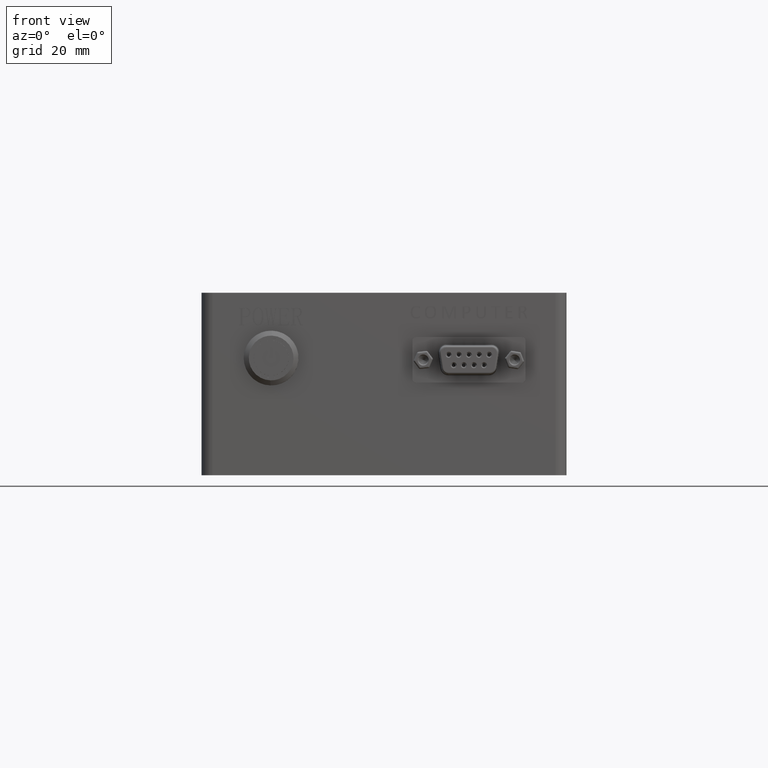
[diagram: clean part render]
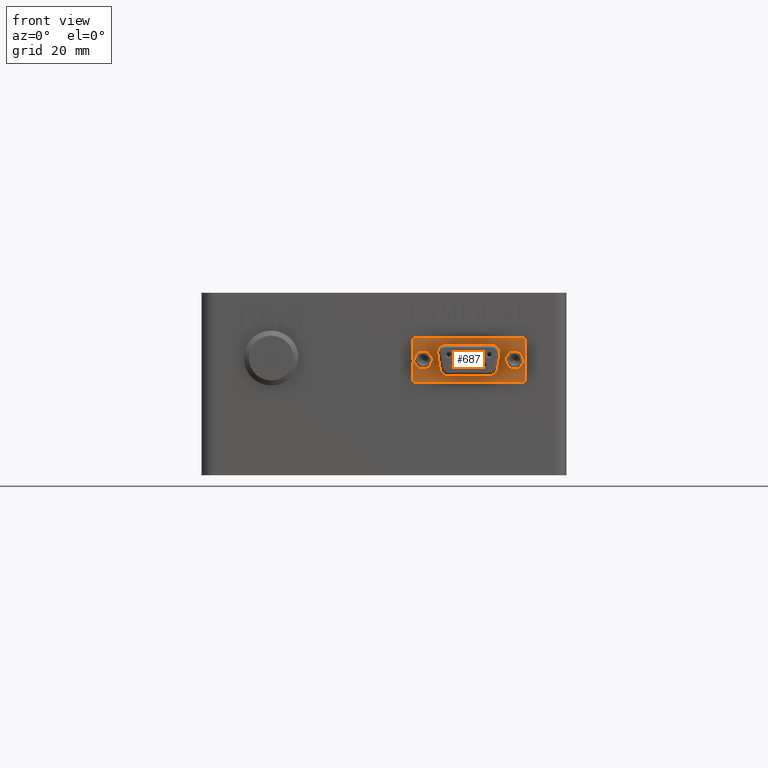
[diagram: same view with one face highlighted and labeled with its STEP entity id]
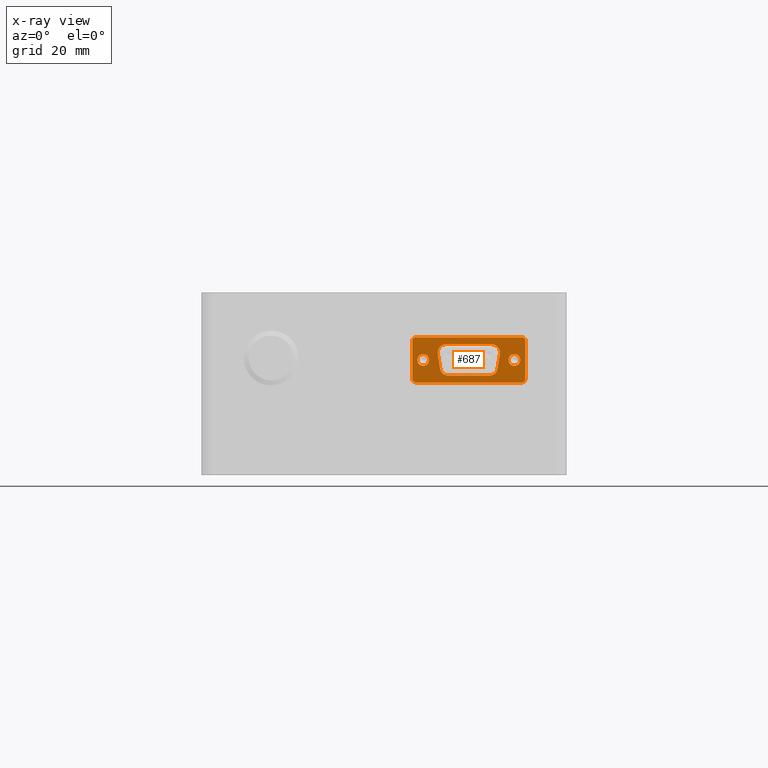
[diagram: x-ray of the same camera — body ghosted, the highlighted face saturated]
A machine part, front view. The second image highlights one B-rep face of the part: STEP entity #687.
The next image is the same camera in x-ray: the body ghosted, the highlighted face saturated — about 0% of this face is hidden behind the body in this view.
In plain terms, the highlighted planar face has unit normal (0, -1, -0).
Its self-contained STEP definition (entity closure, byte-faithful):
#118 = CARTESIAN_POINT ( 'NONE',  ( 65.16332832530879671, -0.8000000000000229150, -19.44379448218207784 ) ) ;
#217 = CARTESIAN_POINT ( 'NONE',  ( 59.41241353529412805, -0.8000000000000212497, -19.33508258535561097 ) ) ;
#458 = B_SPLINE_CURVE_WITH_KNOTS ( 'NONE', 3,
 ( #4830, #4235, #22084, #21786 ),
 .UNSPECIFIED., .F., .F.,
 ( 4, 4 ),
 ( 0.000000000000000000, 1.000000000000000000 ),
 .UNSPECIFIED. ) ;
#581 = CARTESIAN_POINT ( 'NONE',  ( 87.33066148196277823, -0.8000000000000229150, -18.23815931579802907 ) ) ;
#687 = ADVANCED_FACE ( 'NONE', ( #23783, #45069, #18819, #36350 ), #36640, .T. ) ;
#1094 = CARTESIAN_POINT ( 'NONE',  ( 60.95303004803621150, -0.8000000000000209166, -16.82325786537898438 ) ) ;
#1123 = CARTESIAN_POINT ( 'NONE',  ( 57.84992012852401189, -0.7999999999999675149, -12.70127120661569720 ) ) ;
#1249 = ORIENTED_EDGE ( 'NONE', *, *, #4541, .F. ) ;
#1282 = CARTESIAN_POINT ( 'NONE',  ( 65.37166165864228162, -0.8000000000000229150, -20.77712781551537802 ) ) ;
#1538 = ORIENTED_EDGE ( 'NONE', *, *, #39588, .T. ) ;
#1632 = B_SPLINE_CURVE_WITH_KNOTS ( 'NONE', 3,
 ( #42297, #20139, #15747, #53342, #30020, #25636, #21825, #39626, #48659, #12773, #57422, #43989, #47813, #48090, #17430, #52765 ),
 .UNSPECIFIED., .F., .F.,
 ( 4, 2, 2, 2, 2, 2, 2, 4 ),
 ( 0.000000000000000000, 0.1250000000000046074, 0.2500000000000094924, 0.3750000000000139888, 0.5000000000000189848, 0.6250000000000239808, 0.7500000000000279776, 1.000000000000000000 ),
 .UNSPECIFIED. ) ;
#1668 = CARTESIAN_POINT ( 'NONE',  ( 60.95412178630254374, -0.8000000000000203615, -20.02325786537898011 ) ) ;
#1822 = EDGE_CURVE ( 'NONE', #5781, #31170, #5918, .T. ) ;
#2077 = VERTEX_POINT ( 'NONE', #53140 ) ;
#2128 = CARTESIAN_POINT ( 'NONE',  ( 67.63642933951430791, -0.8000000000000229150, -22.71550492665577892 ) ) ;
#2188 = ORIENTED_EDGE ( 'NONE', *, *, #42358, .T. ) ;
#2353 = CARTESIAN_POINT ( 'NONE',  ( 59.15214703213378300, -0.8000000000000229150, -18.60835641496032977 ) ) ;
#2415 = VERTEX_POINT ( 'NONE', #9786 ) ;
#2816 = CARTESIAN_POINT ( 'NONE',  ( 88.74066148196280324, -0.8000000000000229150, -20.15659119871232718 ) ) ;
#2911 = CARTESIAN_POINT ( 'NONE',  ( 66.03936052835879877, -0.8000000000000229150, -22.07378416293312995 ) ) ;
#2951 = CARTESIAN_POINT ( 'NONE',  ( 81.78796001394329096, -0.8000000000000229150, -16.44500586572562995 ) ) ;
#3192 = CARTESIAN_POINT ( 'NONE',  ( 78.84637917458231016, -0.8000000000000229150, -22.71550492665577892 ) ) ;
#3355 = CARTESIAN_POINT ( 'NONE',  ( 84.93397956083674671, -0.8000000000000067057, -19.82086420746477984 ) ) ;
#3364 = CARTESIAN_POINT ( 'NONE',  ( 79.84452238133732749, -0.8000000000000229150, -22.48895375076963177 ) ) ;
#3502 = EDGE_CURVE ( 'NONE', #34409, #38536, #1632, .T. ) ;
#3513 = CARTESIAN_POINT ( 'NONE',  ( 81.41405751355978282, -0.8000000000000229150, -15.19420766651972876 ) ) ;
#3677 = B_SPLINE_CURVE_WITH_KNOTS ( 'NONE', 3,
 ( #8895, #56513, #26143, #39564, #39862, #17080, #48309, #43363, #57649, #57357, #57063, #47751, #52993, #3364, #39009, #52703, #21485, #48886, #7756, #17365, #48600 ),
 .UNSPECIFIED., .F., .F.,
 ( 4, 1, 1, 2, 2, 2, 2, 1, 1, 1, 2, 2, 4 ),
 ( 0.000000000000000000, 0.1250000000000441869, 0.1875000000000695000, 0.2187500000000794920, 0.2500000000000889844, 0.3750000000002089995, 0.5000000000003289591, 0.6250000000004489742, 0.6875000000005110357, 0.7187500000005200285, 0.7343750000005020429, 0.7500000000004839462, 1.000000000000000000 ),
 .UNSPECIFIED. ) ;
#3748 = EDGE_CURVE ( 'NONE', #2415, #26498, #3677, .T. ) ;
#3889 = CARTESIAN_POINT ( 'NONE',  ( 59.41180698102721180, -0.8000000000000215827, -17.51174632677707166 ) ) ;
#3916 = CARTESIAN_POINT ( 'NONE',  ( 85.52868672782102522, -0.8000000000000068168, -16.82325786537898438 ) ) ;
#4059 = ORIENTED_EDGE ( 'NONE', *, *, #9459, .T. ) ;
#4071 = CARTESIAN_POINT ( 'NONE',  ( 79.80172021305482133, -0.8000000000000229150, -14.14857528253308416 ) ) ;
#4235 = CARTESIAN_POINT ( 'NONE',  ( 78.07448999868627482, -0.8000000000000229150, -24.62325786537897798 ) ) ;
#4358 = EDGE_CURVE ( 'NONE', #31606, #2077, #7004, .T. ) ;
#4541 = EDGE_CURVE ( 'NONE', #57336, #13627, #35531, .T. ) ;
#4618 = CARTESIAN_POINT ( 'NONE',  ( 88.00246086976194704, -0.7999999999999674039, -24.62325786537898153 ) ) ;
#4830 = CARTESIAN_POINT ( 'NONE',  ( 87.74066148196280324, -0.8000000000000229150, -24.62325786537897798 ) ) ;
#5035 = B_SPLINE_CURVE_WITH_KNOTS ( 'NONE', 3,
 ( #34870, #43340, #12125, #21185, #24993, #30496 ),
 .UNSPECIFIED., .F., .F.,
 ( 4, 2, 4 ),
 ( 0.000000000000000000, 0.5000000000000000000, 1.000000000000000000 ),
 .UNSPECIFIED. ) ;
#5781 = VERTEX_POINT ( 'NONE', #29409 ) ;
#5918 = B_SPLINE_CURVE_WITH_KNOTS ( 'NONE', 3,
 ( #53793, #30730, #21695, #47958 ),
 .UNSPECIFIED., .F., .F.,
 ( 4, 4 ),
 ( 0.000000000000000000, 1.000000000000000000 ),
 .UNSPECIFIED. ) ;
#6062 = EDGE_LOOP ( 'NONE', ( #48375, #44108, #42787, #4059 ) ) ;
#6331 = CARTESIAN_POINT ( 'NONE',  ( 88.74066148196280324, -0.8000000000000229150, -23.62325786537897798 ) ) ;
#6722 = CARTESIAN_POINT ( 'NONE',  ( 65.74958718103779631, -0.8000000000000229150, -21.72833105148452759 ) ) ;
#6791 = ORIENTED_EDGE ( 'NONE', *, *, #1822, .F. ) ;
#7004 = B_SPLINE_CURVE_WITH_KNOTS ( 'NONE', 3,
 ( #21629, #29824, #4071, #43512, #47894, #11732, #52008, #26005, #43791, #16401, #3513, #12574, #38313, #21359, #2951, #16950 ),
 .UNSPECIFIED., .F., .F.,
 ( 4, 2, 2, 2, 2, 2, 2, 4 ),
 ( 0.000000000000000000, 0.1250000000000000000, 0.2500000000000000000, 0.3750000000000000000, 0.5000000000000000000, 0.6250000000000000000, 0.7500000000000000000, 1.000000000000000000 ),
 .UNSPECIFIED. ) ;
#7005 = CARTESIAN_POINT ( 'NONE',  ( 65.49619395360379315, -0.8000000000000229150, -21.28624587156673087 ) ) ;
#7190 = AXIS2_PLACEMENT_3D ( 'NONE', #27573, #50620, #54142 ) ;
#7245 = CARTESIAN_POINT ( 'NONE',  ( 57.74214703213381483, -0.8000000000000229150, -23.62325786537897798 ) ) ;
#7306 = CARTESIAN_POINT ( 'NONE',  ( 66.89960734923478469, -0.8000000000000229150, -22.59409420372617561 ) ) ;
#7370 = EDGE_CURVE ( 'NONE', #10389, #44955, #49243, .T. ) ;
#7464 = CARTESIAN_POINT ( 'NONE',  ( 84.93363263330176949, -0.8000000000000071498, -17.02624577868271061 ) ) ;
#7661 = CARTESIAN_POINT ( 'NONE',  ( 57.74214703213381483, -0.8000000000000229150, -16.68992453204563020 ) ) ;
#7716 = CARTESIAN_POINT ( 'NONE',  ( 59.82305313703623995, -0.8000000000000212497, -17.09837536939596347 ) ) ;
#7736 = CARTESIAN_POINT ( 'NONE',  ( 57.84992012852400478, -0.7999999999999674039, -24.14524452414225664 ) ) ;
#7756 = CARTESIAN_POINT ( 'NONE',  ( 79.36861884771329301, -0.8000000000000229150, -22.67106157782707854 ) ) ;
#8025 = CARTESIAN_POINT ( 'NONE',  ( 85.74140425704828772, -0.8000000000000229150, -20.02325786537898011 ) ) ;
#8563 = CARTESIAN_POINT ( 'NONE',  ( 59.53191970639831254, -0.8000000000000216938, -17.35809530767429720 ) ) ;
#8804 = CARTESIAN_POINT ( 'NONE',  ( 81.11114685545378222, -0.8000000000000229150, -20.77712781551542420 ) ) ;
#8895 = CARTESIAN_POINT ( 'NONE',  ( 81.11114685545378222, -0.8000000000000229150, -20.77712781551542420 ) ) ;
#9459 = EDGE_CURVE ( 'NONE', #43215, #27560, #42013, .T. ) ;
#9460 = B_SPLINE_CURVE_WITH_KNOTS ( 'NONE', 3,
 ( #8025, #48298, #56780, #3355, #53265, #38997, #47742, #16796, #48016, #21475, #43633, #13276, #39275, #47455, #7464, #12697, #3916, #39551 ),
 .UNSPECIFIED., .F., .F.,
 ( 4, 2, 2, 2, 2, 2, 2, 2, 4 ),
 ( 0.000000000000000000, 0.1250000000000000000, 0.2500000000000000000, 0.3750000000000000000, 0.5000000000000000000, 0.6250000000000000000, 0.7500000000000000000, 0.8750000000000000000, 1.000000000000000000 ),
 .UNSPECIFIED. ) ;
#9786 = CARTESIAN_POINT ( 'NONE',  ( 81.11114685545378222, -0.8000000000000229150, -20.77712781551542420 ) ) ;
#9856 = CARTESIAN_POINT ( 'NONE',  ( 62.34119630927296640, -0.8000000000000199174, -18.21213550590827523 ) ) ;
#9863 = CARTESIAN_POINT ( 'NONE',  ( 59.82331459801243057, -0.8000000000000209166, -19.74784668104077312 ) ) ;
#9889 = CARTESIAN_POINT ( 'NONE',  ( 58.22016037337053973, -0.7999999999999674039, -12.33103096176916580 ) ) ;
#10148 = CARTESIAN_POINT ( 'NONE',  ( 62.02191444988514490, -0.8000000000000196954, -19.40519528917248948 ) ) ;
#10389 = VERTEX_POINT ( 'NONE', #19327 ) ;
#10429 = CARTESIAN_POINT ( 'NONE',  ( 60.74140425704832325, -0.8000000000000229150, -20.02325786537898011 ) ) ;
#10481 = CARTESIAN_POINT ( 'NONE',  ( 64.74666165864229583, -0.8000000000000229150, -16.77712781551547749 ) ) ;
#10521 = B_SPLINE_CURVE_WITH_KNOTS ( 'NONE', 3,
 ( #1282, #118, #13859, #45658 ),
 .UNSPECIFIED., .F., .F.,
 ( 4, 4 ),
 ( 0.000000000000000000, 1.000000000000000000 ),
 .UNSPECIFIED. ) ;
#11139 = ORIENTED_EDGE ( 'NONE', *, *, #12545, .F. ) ;
#11403 = CARTESIAN_POINT ( 'NONE',  ( 65.62992489534779850, -0.8000000000000229150, -21.53163307446892460 ) ) ;
#11654 = ORIENTED_EDGE ( 'NONE', *, *, #56064, .T. ) ;
#11732 = CARTESIAN_POINT ( 'NONE',  ( 80.58119963870980484, -0.8000000000000229150, -14.41044273582622814 ) ) ;
#11971 = CARTESIAN_POINT ( 'NONE',  ( 66.60832698171780919, -0.8000000000000229150, -22.47715193817913359 ) ) ;
#12125 = CARTESIAN_POINT ( 'NONE',  ( 88.26264814072611387, -0.7999999999999671818, -12.33103096176916402 ) ) ;
#12296 = CARTESIAN_POINT ( 'NONE',  ( 87.25130140559382141, -0.8000000000000055955, -17.85835794617969086 ) ) ;
#12377 = VERTEX_POINT ( 'NONE', #49804 ) ;
#12545 = EDGE_CURVE ( 'NONE', #31170, #57336, #5035, .T. ) ;
#12574 = CARTESIAN_POINT ( 'NONE',  ( 81.56863201400177843, -0.8000000000000229150, -15.48249286880382769 ) ) ;
#12697 = CARTESIAN_POINT ( 'NONE',  ( 85.32458889722620654, -0.8000000000000071498, -16.86385544803972891 ) ) ;
#12737 = CARTESIAN_POINT ( 'NONE',  ( 87.74066148196280324, -0.8000000000000229150, -24.62325786537897798 ) ) ;
#12773 = CARTESIAN_POINT ( 'NONE',  ( 65.37795858093680579, -0.8000000000000229150, -14.80619049338637794 ) ) ;
#12917 = CARTESIAN_POINT ( 'NONE',  ( 86.65975537706478349, -0.8000000000000059286, -19.74814036135813211 ) ) ;
#13276 = CARTESIAN_POINT ( 'NONE',  ( 84.34379791555494421, -0.8000000000000072609, -17.61583316850715519 ) ) ;
#13542 = EDGE_CURVE ( 'NONE', #12377, #34409, #10521, .T. ) ;
#13627 = VERTEX_POINT ( 'NONE', #24360 ) ;
#13859 = CARTESIAN_POINT ( 'NONE',  ( 64.95499499197582338, -0.8000000000000229150, -18.11046114884877412 ) ) ;
#14121 = B_SPLINE_CURVE_WITH_KNOTS ( 'NONE', 3,
 ( #47315, #30646, #43772, #21058 ),
 .UNSPECIFIED., .F., .F.,
 ( 4, 4 ),
 ( 0.000000000000000000, 1.000000000000000000 ),
 .UNSPECIFIED. ) ;
#14697 = B_SPLINE_CURVE_WITH_KNOTS ( 'NONE', 3,
 ( #23327, #33471, #1123, #9889, #54544, #15940 ),
 .UNSPECIFIED., .F., .F.,
 ( 4, 2, 4 ),
 ( 0.000000000000000000, 0.5000000000000000000, 1.000000000000000000 ),
 .UNSPECIFIED. ) ;
#14805 = CARTESIAN_POINT ( 'NONE',  ( 62.02220820029873494, -0.8000000000000200284, -17.44102602626195520 ) ) ;
#14919 = EDGE_CURVE ( 'NONE', #17586, #48571, #38256, .T. ) ;
#15080 = CARTESIAN_POINT ( 'NONE',  ( 87.33066148196277823, -0.8000000000000229150, -18.23815931579802907 ) ) ;
#15322 = ORIENTED_EDGE ( 'NONE', *, *, #3748, .T. ) ;
#15484 = CARTESIAN_POINT ( 'NONE',  ( 67.08657304121379639, -0.8000000000000229150, -22.65027914975502910 ) ) ;
#15687 = CARTESIAN_POINT ( 'NONE',  ( 88.74066148196280324, -0.8000000000000229150, -16.68992453204563020 ) ) ;
#15747 = CARTESIAN_POINT ( 'NONE',  ( 64.71301855574380113, -0.8000000000000229150, -16.44803534482992902 ) ) ;
#15790 = VERTEX_POINT ( 'NONE', #15080 ) ;
#15924 = EDGE_CURVE ( 'NONE', #51745, #46880, #9460, .T. ) ;
#15940 = CARTESIAN_POINT ( 'NONE',  ( 58.74214703213381483, -0.8000000000000229150, -12.22325786537897763 ) ) ;
#16401 = CARTESIAN_POINT ( 'NONE',  ( 81.32123131720180709, -0.8000000000000229150, -15.05900691515713063 ) ) ;
#16463 = CARTESIAN_POINT ( 'NONE',  ( 86.12783644811321437, -0.8000000000000061506, -19.98836855782054656 ) ) ;
#16632 = CARTESIAN_POINT ( 'NONE',  ( 66.36810844373431451, -0.8000000000000229150, -22.33794696940752544 ) ) ;
#16676 = CARTESIAN_POINT ( 'NONE',  ( 86.95115026864850449, -0.8000000000000060396, -17.35780162733155763 ) ) ;
#16796 = CARTESIAN_POINT ( 'NONE',  ( 84.18221185714185140, -0.8000000000000072609, -18.84057930859540875 ) ) ;
#16913 = CARTESIAN_POINT ( 'NONE',  ( 75.10972922955983222, -0.8000000000000229150, -22.71550492665577892 ) ) ;
#16950 = CARTESIAN_POINT ( 'NONE',  ( 81.73614685545376801, -0.8000000000000229150, -16.77712781551547749 ) ) ;
#17045 = CARTESIAN_POINT ( 'NONE',  ( 59.98944815139013542, -0.8000000000000213607, -16.99770440317210074 ) ) ;
#17080 = CARTESIAN_POINT ( 'NONE',  ( 80.89162917455932700, -0.8000000000000229150, -21.45873259092143215 ) ) ;
#17365 = CARTESIAN_POINT ( 'NONE',  ( 79.11200076842828821, -0.8000000000000229150, -22.71544329610622981 ) ) ;
#17430 = CARTESIAN_POINT ( 'NONE',  ( 66.67529010272527046, -0.8000000000000229150, -14.13109073048793363 ) ) ;
#17516 = B_SPLINE_CURVE_WITH_KNOTS ( 'NONE', 3,
 ( #20612, #51816, #44173, #3889, #8563, #7716, #17045, #52952, #56478, #43326 ),
 .UNSPECIFIED., .F., .F.,
 ( 4, 2, 2, 2, 4 ),
 ( 0.000000000000000000, 0.2500000000000000000, 0.5000000000000000000, 0.7500000000000000000, 1.000000000000000000 ),
 .UNSPECIFIED. ) ;
#17533 = CARTESIAN_POINT ( 'NONE',  ( 67.01142933951426528, -0.8000000000000229150, -14.13101080410277710 ) ) ;
#17586 = VERTEX_POINT ( 'NONE', #27736 ) ;
#17746 = CARTESIAN_POINT ( 'NONE',  ( 60.54581432107978145, -0.8000000000000205835, -20.02325786537897656 ) ) ;
#17891 = EDGE_CURVE ( 'NONE', #15790, #48783, #39967, .T. ) ;
#18055 = CARTESIAN_POINT ( 'NONE',  ( 87.74066148196280324, -0.8000000000000229150, -24.62325786537897798 ) ) ;
#18458 = CARTESIAN_POINT ( 'NONE',  ( 81.73614685545376801, -0.8000000000000229150, -16.77712781551547749 ) ) ;
#18819 = FACE_BOUND ( 'NONE', #53687, .T. ) ;
#18906 = CARTESIAN_POINT ( 'NONE',  ( 61.54882895324046643, -0.8000000000000203615, -17.02565152328229203 ) ) ;
#19196 = CARTESIAN_POINT ( 'NONE',  ( 61.72334201359438310, -0.8000000000000204725, -17.14274800469959459 ) ) ;
#19327 = CARTESIAN_POINT ( 'NONE',  ( 60.74140425704832325, -0.8000000000000229150, -16.82325786537897727 ) ) ;
#19499 = CARTESIAN_POINT ( 'NONE',  ( 87.33066148196277823, -0.8000000000000229150, -18.60835641496053228 ) ) ;
#20139 = CARTESIAN_POINT ( 'NONE',  ( 64.72092419118679629, -0.8000000000000229150, -16.61215084589672841 ) ) ;
#20612 = CARTESIAN_POINT ( 'NONE',  ( 59.15214703213378300, -0.8000000000000229150, -18.23815931579812855 ) ) ;
#20755 = CARTESIAN_POINT ( 'NONE',  ( 65.41272838336381312, -0.8000000000000229150, -21.03955563236457849 ) ) ;
#20832 = CARTESIAN_POINT ( 'NONE',  ( 57.74214703213381483, -0.8000000000000229150, -13.22325786537897940 ) ) ;
#20852 = CARTESIAN_POINT ( 'NONE',  ( 87.07100153306930679, -0.8000000000000055955, -19.33476940398136534 ) ) ;
#20967 = B_SPLINE_CURVE_WITH_KNOTS ( 'NONE', 3,
 ( #3192, #16913, #21038, #38561 ),
 .UNSPECIFIED., .F., .F.,
 ( 4, 4 ),
 ( 0.000000000000000000, 1.000000000000000000 ),
 .UNSPECIFIED. ) ;
#21036 = CARTESIAN_POINT ( 'NONE',  ( 67.63642933951430791, -0.8000000000000229150, -22.71550492665577892 ) ) ;
#21038 = CARTESIAN_POINT ( 'NONE',  ( 71.37307928453678585, -0.8000000000000229150, -22.71550492665577892 ) ) ;
#21058 = CARTESIAN_POINT ( 'NONE',  ( 79.47137917458229595, -0.8000000000000229150, -14.13101080410277710 ) ) ;
#21185 = CARTESIAN_POINT ( 'NONE',  ( 88.63288838557259908, -0.7999999999999668487, -12.70127120661569720 ) ) ;
#21359 = CARTESIAN_POINT ( 'NONE',  ( 81.76810762080283723, -0.8000000000000229150, -16.11849780069592697 ) ) ;
#21475 = CARTESIAN_POINT ( 'NONE',  ( 84.14119630927235960, -0.8000000000000075939, -18.21213550588149133 ) ) ;
#21485 = CARTESIAN_POINT ( 'NONE',  ( 79.64960019511929090, -0.8000000000000229150, -22.57019931813507441 ) ) ;
#21629 = CARTESIAN_POINT ( 'NONE',  ( 79.47137917458229595, -0.8000000000000229150, -14.13101080410277710 ) ) ;
#21695 = CARTESIAN_POINT ( 'NONE',  ( 78.07448999868627482, -0.8000000000000229150, -12.22325786537897763 ) ) ;
#21786 = CARTESIAN_POINT ( 'NONE',  ( 58.74214703213381483, -0.8000000000000229150, -24.62325786537897798 ) ) ;
#21825 = CARTESIAN_POINT ( 'NONE',  ( 64.91265392944983148, -0.8000000000000229150, -15.48533790680847666 ) ) ;
#22084 = CARTESIAN_POINT ( 'NONE',  ( 68.40831851541028641, -0.8000000000000229150, -24.62325786537897798 ) ) ;
#22108 = CARTESIAN_POINT ( 'NONE',  ( 59.15214703213378300, -0.8000000000000229150, -18.48495738190628046 ) ) ;
#22400 = CARTESIAN_POINT ( 'NONE',  ( 59.15214703213378300, -0.8000000000000229150, -18.60835641496032977 ) ) ;
#22593 = ORIENTED_EDGE ( 'NONE', *, *, #24243, .F. ) ;
#22594 = EDGE_CURVE ( 'NONE', #46880, #15790, #49800, .T. ) ;
#22971 = CARTESIAN_POINT ( 'NONE',  ( 85.74140425704828772, -0.8000000000000229150, -20.02325786537898011 ) ) ;
#22991 = EDGE_CURVE ( 'NONE', #44955, #43215, #30258, .T. ) ;
#23015 = CARTESIAN_POINT ( 'NONE',  ( 62.30059665695520010, -0.8000000000000199174, -18.00593642223968516 ) ) ;
#23225 = CARTESIAN_POINT ( 'NONE',  ( 59.15214703213378300, -0.8000000000000229150, -18.23815931579812855 ) ) ;
#23300 = CARTESIAN_POINT ( 'NONE',  ( 59.17490267857736796, -0.8000000000000215827, -18.80373652787930183 ) ) ;
#23327 = CARTESIAN_POINT ( 'NONE',  ( 57.74214703213381483, -0.8000000000000229150, -13.22325786537897940 ) ) ;
#23783 = FACE_BOUND ( 'NONE', #37145, .T. ) ;
#24243 = EDGE_CURVE ( 'NONE', #55244, #17586, #458, .T. ) ;
#24360 = CARTESIAN_POINT ( 'NONE',  ( 88.74066148196280324, -0.8000000000000229150, -23.62325786537897798 ) ) ;
#24399 = VERTEX_POINT ( 'NONE', #52380 ) ;
#24551 = CARTESIAN_POINT ( 'NONE',  ( 65.68371744065781570, -0.8000000000000229150, -21.62462019547688286 ) ) ;
#24993 = CARTESIAN_POINT ( 'NONE',  ( 88.74066148196280324, -0.7999999999999671818, -12.96145847757983383 ) ) ;
#25636 = CARTESIAN_POINT ( 'NONE',  ( 64.85141314891434661, -0.8000000000000229150, -15.63747401172847695 ) ) ;
#26005 = CARTESIAN_POINT ( 'NONE',  ( 80.98302430032927646, -0.8000000000000229150, -14.69166169789147602 ) ) ;
#26143 = CARTESIAN_POINT ( 'NONE',  ( 81.04419540511231901, -0.8000000000000229150, -21.09746198689292740 ) ) ;
#26398 = CARTESIAN_POINT ( 'NONE',  ( 57.74214703213382194, -0.7999999999999675149, -23.88505725317812534 ) ) ;
#26498 = VERTEX_POINT ( 'NONE', #42499 ) ;
#26901 = EDGE_CURVE ( 'NONE', #2077, #2415, #53881, .T. ) ;
#27374 = CARTESIAN_POINT ( 'NONE',  ( 87.33066148196277823, -0.8000000000000229150, -18.23815931579802907 ) ) ;
#27560 = VERTEX_POINT ( 'NONE', #23225 ) ;
#27573 = CARTESIAN_POINT ( 'NONE',  ( 58.70969845591977787, -0.8000000000000229150, -12.02850345761768303 ) ) ;
#27664 = CARTESIAN_POINT ( 'NONE',  ( 61.72363576400795893, -0.8000000000000200284, -19.70406214138293066 ) ) ;
#27672 = CARTESIAN_POINT ( 'NONE',  ( 59.53165824542211482, -0.8000000000000211386, -19.48871410340587573 ) ) ;
#27736 = CARTESIAN_POINT ( 'NONE',  ( 58.74214703213381483, -0.8000000000000229150, -24.62325786537897798 ) ) ;
#27875 = B_SPLINE_CURVE_WITH_KNOTS ( 'NONE', 3,
 ( #39971, #30912, #53102, #48702, #4618, #18055 ),
 .UNSPECIFIED., .F., .F.,
 ( 4, 2, 4 ),
 ( 0.000000000000000000, 0.5000000000000000000, 1.000000000000000000 ),
 .UNSPECIFIED. ) ;
#27948 = CARTESIAN_POINT ( 'NONE',  ( 62.34161220482311450, -0.8000000000000198064, -18.63438022485021861 ) ) ;
#28334 = ORIENTED_EDGE ( 'NONE', *, *, #4358, .T. ) ;
#29136 = EDGE_LOOP ( 'NONE', ( #1249, #11139, #6791, #54812, #31524, #43043, #22593, #39189 ) ) ;
#29409 = CARTESIAN_POINT ( 'NONE',  ( 58.74214703213381483, -0.8000000000000229150, -12.22325786537897763 ) ) ;
#29786 = CARTESIAN_POINT ( 'NONE',  ( 67.30959956731430793, -0.8000000000000229150, -22.69880827806332846 ) ) ;
#29812 = ORIENTED_EDGE ( 'NONE', *, *, #17891, .T. ) ;
#29824 = CARTESIAN_POINT ( 'NONE',  ( 79.63835167575633989, -0.8000000000000229150, -14.13105050642542793 ) ) ;
#29897 = ORIENTED_EDGE ( 'NONE', *, *, #22594, .T. ) ;
#30020 = CARTESIAN_POINT ( 'NONE',  ( 64.76102452721477221, -0.8000000000000229150, -15.95773322912442893 ) ) ;
#30159 = CARTESIAN_POINT ( 'NONE',  ( 85.74140425704828772, -0.8000000000000229150, -20.02325786537898011 ) ) ;
#30258 = B_SPLINE_CURVE_WITH_KNOTS ( 'NONE', 3,
 ( #57730, #17746, #49842, #35565, #9863, #27672, #217, #45463, #23300, #36157 ),
 .UNSPECIFIED., .F., .F.,
 ( 4, 2, 2, 2, 4 ),
 ( 0.000000000000000000, 0.2500000000000000000, 0.5000000000000000000, 0.7500000000000000000, 1.000000000000000000 ),
 .UNSPECIFIED. ) ;
#30496 = CARTESIAN_POINT ( 'NONE',  ( 88.74066148196280324, -0.8000000000000229150, -13.22325786537897940 ) ) ;
#30646 = CARTESIAN_POINT ( 'NONE',  ( 71.16474595120381252, -0.8000000000000229150, -14.13101080410277710 ) ) ;
#30730 = CARTESIAN_POINT ( 'NONE',  ( 68.40831851541028641, -0.8000000000000229150, -12.22325786537897763 ) ) ;
#30778 = CARTESIAN_POINT ( 'NONE',  ( 58.22016037337053973, -0.7999999999999675149, -24.51548476898879514 ) ) ;
#30912 = CARTESIAN_POINT ( 'NONE',  ( 88.74066148196277481, -0.7999999999999670708, -23.88505725317811823 ) ) ;
#30959 = CARTESIAN_POINT ( 'NONE',  ( 86.12821769688461870, -0.8000000000000067057, -16.85871342376849924 ) ) ;
#31170 = VERTEX_POINT ( 'NONE', #41756 ) ;
#31262 = CARTESIAN_POINT ( 'NONE',  ( 88.74066148196280324, -0.8000000000000229150, -13.22325786537897940 ) ) ;
#31524 = ORIENTED_EDGE ( 'NONE', *, *, #45764, .F. ) ;
#31606 = VERTEX_POINT ( 'NONE', #34101 ) ;
#33322 = CARTESIAN_POINT ( 'NONE',  ( 66.92910716440280794, -0.8000000000000229150, -22.60384283511762504 ) ) ;
#33471 = CARTESIAN_POINT ( 'NONE',  ( 57.74214703213380773, -0.7999999999999671818, -12.96145847757982494 ) ) ;
#33609 = EDGE_CURVE ( 'NONE', #24399, #5781, #14697, .T. ) ;
#33856 = VERTEX_POINT ( 'NONE', #2128 ) ;
#34101 = CARTESIAN_POINT ( 'NONE',  ( 79.47137917458229595, -0.8000000000000229150, -14.13101080410277710 ) ) ;
#34182 = CARTESIAN_POINT ( 'NONE',  ( 66.99196371856081100, -0.8000000000000229150, -22.62324837167092895 ) ) ;
#34280 = CARTESIAN_POINT ( 'NONE',  ( 85.93810506532736326, -0.8000000000000062617, -20.02325786537898367 ) ) ;
#34409 = VERTEX_POINT ( 'NONE', #10481 ) ;
#34454 = CARTESIAN_POINT ( 'NONE',  ( 65.63922410375927541, -0.8000000000000229150, -21.54828802304612623 ) ) ;
#34494 = CARTESIAN_POINT ( 'NONE',  ( 87.07039497880666090, -0.8000000000000060396, -17.51143314543934437 ) ) ;
#34520 = B_SPLINE_CURVE_WITH_KNOTS ( 'NONE', 3,
 ( #39188, #34795, #7661, #20832 ),
 .UNSPECIFIED., .F., .F.,
 ( 4, 4 ),
 ( 0.000000000000000000, 1.000000000000000000 ),
 .UNSPECIFIED. ) ;
#34795 = CARTESIAN_POINT ( 'NONE',  ( 57.74214703213381483, -0.8000000000000229150, -20.15659119871232718 ) ) ;
#34870 = CARTESIAN_POINT ( 'NONE',  ( 87.74066148196280324, -0.8000000000000229150, -12.22325786537897763 ) ) ;
#34874 = CARTESIAN_POINT ( 'NONE',  ( 58.48034764433465682, -0.7999999999999671818, -24.62325786537897443 ) ) ;
#35342 = CARTESIAN_POINT ( 'NONE',  ( 85.74140425704828772, -0.8000000000000229150, -16.82325786537897727 ) ) ;
#35531 = B_SPLINE_CURVE_WITH_KNOTS ( 'NONE', 3,
 ( #55375, #15687, #2816, #6331 ),
 .UNSPECIFIED., .F., .F.,
 ( 4, 4 ),
 ( 0.000000000000000000, 1.000000000000000000 ),
 .UNSPECIFIED. ) ;
#35565 = CARTESIAN_POINT ( 'NONE',  ( 59.98982940017546639, -0.8000000000000208056, -19.84937757842097739 ) ) ;
#35930 = CARTESIAN_POINT ( 'NONE',  ( 87.30790583551464579, -0.8000000000000057065, -18.04277920284252446 ) ) ;
#36157 = CARTESIAN_POINT ( 'NONE',  ( 59.15214703213378300, -0.8000000000000229150, -18.60835641496032977 ) ) ;
#36350 = FACE_OUTER_BOUND ( 'NONE', #29136, .T. ) ;
#36640 = PLANE ( 'NONE',  #7190 ) ;
#36696 = CARTESIAN_POINT ( 'NONE',  ( 87.33066148196277823, -0.8000000000000229150, -18.60835641496053228 ) ) ;
#36725 = CARTESIAN_POINT ( 'NONE',  ( 62.30021241956106337, -0.8000000000000199174, -18.84042015212035537 ) ) ;
#37145 = EDGE_LOOP ( 'NONE', ( #2188, #56656, #29897, #29812 ) ) ;
#37586 = CARTESIAN_POINT ( 'NONE',  ( 60.74140425704832325, -0.8000000000000229150, -16.82325786537897727 ) ) ;
#37683 = CARTESIAN_POINT ( 'NONE',  ( 66.73444611136281424, -0.8000000000000229150, -22.53542204418752704 ) ) ;
#38256 = B_SPLINE_CURVE_WITH_KNOTS ( 'NONE', 3,
 ( #57042, #34874, #30778, #7736, #26398, #38983 ),
 .UNSPECIFIED., .F., .F.,
 ( 4, 2, 4 ),
 ( 0.000000000000000000, 0.5000000000000000000, 1.000000000000000000 ),
 .UNSPECIFIED. ) ;
#38313 = CARTESIAN_POINT ( 'NONE',  ( 81.63083070364629634, -0.8000000000000229150, -15.63715653029172614 ) ) ;
#38536 = VERTEX_POINT ( 'NONE', #17533 ) ;
#38561 = CARTESIAN_POINT ( 'NONE',  ( 67.63642933951430791, -0.8000000000000229150, -22.71550492665577892 ) ) ;
#38878 = CARTESIAN_POINT ( 'NONE',  ( 86.49297911392694971, -0.8000000000000063727, -16.99713815234125036 ) ) ;
#38935 = CARTESIAN_POINT ( 'NONE',  ( 87.30803434854978207, -0.8000000000000055955, -18.80263311424788952 ) ) ;
#38983 = CARTESIAN_POINT ( 'NONE',  ( 57.74214703213381483, -0.8000000000000229150, -23.62325786537897798 ) ) ;
#38997 = CARTESIAN_POINT ( 'NONE',  ( 84.46060031384575950, -0.8000000000000069278, -19.40548970453734157 ) ) ;
#39009 = CARTESIAN_POINT ( 'NONE',  ( 79.73188604256725398, -0.8000000000000229150, -22.53802328851288550 ) ) ;
#39188 = CARTESIAN_POINT ( 'NONE',  ( 57.74214703213381483, -0.8000000000000229150, -23.62325786537897798 ) ) ;
#39189 = ORIENTED_EDGE ( 'NONE', *, *, #56181, .F. ) ;
#39275 = CARTESIAN_POINT ( 'NONE',  ( 84.46089406416753320, -0.8000000000000075939, -17.44132044161501227 ) ) ;
#39487 = CARTESIAN_POINT ( 'NONE',  ( 87.25069485133056446, -0.8000000000000057065, -18.98847096591672567 ) ) ;
#39551 = CARTESIAN_POINT ( 'NONE',  ( 85.74140425704828772, -0.8000000000000229150, -16.82325786537897727 ) ) ;
#39564 = CARTESIAN_POINT ( 'NONE',  ( 80.96181790303779735, -0.8000000000000229150, -21.31032310310093081 ) ) ;
#39588 = EDGE_CURVE ( 'NONE', #33856, #12377, #47644, .T. ) ;
#39626 = CARTESIAN_POINT ( 'NONE',  ( 65.06722842989182709, -0.8000000000000229150, -15.19705270452432977 ) ) ;
#39862 = CARTESIAN_POINT ( 'NONE',  ( 80.92050567693232210, -0.8000000000000229150, -21.39962532520127425 ) ) ;
#39909 = CARTESIAN_POINT ( 'NONE',  ( 59.15214703213378300, -0.8000000000000229150, -18.36155834885222404 ) ) ;
#39967 = B_SPLINE_CURVE_WITH_KNOTS ( 'NONE', 3,
 ( #27374, #54813, #45165, #19499 ),
 .UNSPECIFIED., .F., .F.,
 ( 4, 4 ),
 ( 0.000000000000000000, 1.000000000000000000 ),
 .UNSPECIFIED. ) ;
#39971 = CARTESIAN_POINT ( 'NONE',  ( 88.74066148196280324, -0.8000000000000229150, -23.62325786537897798 ) ) ;
#41667 = CARTESIAN_POINT ( 'NONE',  ( 62.13901059857131770, -0.8000000000000200284, -19.23068256220641103 ) ) ;
#41756 = CARTESIAN_POINT ( 'NONE',  ( 87.74066148196280324, -0.8000000000000229150, -12.22325786537897763 ) ) ;
#42013 = B_SPLINE_CURVE_WITH_KNOTS ( 'NONE', 3,
 ( #22400, #22108, #39909, #48077 ),
 .UNSPECIFIED., .F., .F.,
 ( 4, 4 ),
 ( 0.000000000000000000, 1.000000000000000000 ),
 .UNSPECIFIED. ) ;
#42058 = CARTESIAN_POINT ( 'NONE',  ( 65.37166165864228162, -0.8000000000000229150, -20.77712781551537802 ) ) ;
#42297 = CARTESIAN_POINT ( 'NONE',  ( 64.74666165864229583, -0.8000000000000229150, -16.77712781551547749 ) ) ;
#42358 = EDGE_CURVE ( 'NONE', #48783, #51745, #52244, .T. ) ;
#42499 = CARTESIAN_POINT ( 'NONE',  ( 78.84637917458231016, -0.8000000000000229150, -22.71550492665577892 ) ) ;
#42787 = ORIENTED_EDGE ( 'NONE', *, *, #22991, .T. ) ;
#43043 = ORIENTED_EDGE ( 'NONE', *, *, #14919, .F. ) ;
#43184 = CARTESIAN_POINT ( 'NONE',  ( 66.25247844705927491, -0.8000000000000229150, -22.25570556807413070 ) ) ;
#43215 = VERTEX_POINT ( 'NONE', #2353 ) ;
#43287 = CARTESIAN_POINT ( 'NONE',  ( 87.33066148196277823, -0.8000000000000229150, -18.60835641496053228 ) ) ;
#43326 = CARTESIAN_POINT ( 'NONE',  ( 60.74140425704832325, -0.8000000000000229150, -16.82325786537897727 ) ) ;
#43340 = CARTESIAN_POINT ( 'NONE',  ( 88.00246086976194704, -0.7999999999999672928, -12.22325786537897585 ) ) ;
#43363 = CARTESIAN_POINT ( 'NONE',  ( 80.79397744368027645, -0.8000000000000229150, -21.64049746559692977 ) ) ;
#43512 = CARTESIAN_POINT ( 'NONE',  ( 80.12124935990178187, -0.8000000000000229150, -14.21859498231833108 ) ) ;
#43633 = CARTESIAN_POINT ( 'NONE',  ( 84.18259609450481662, -0.8000000000000074829, -18.00609557868309096 ) ) ;
#43772 = CARTESIAN_POINT ( 'NONE',  ( 75.31806256289280554, -0.8000000000000229150, -14.13101080410277710 ) ) ;
#43791 = CARTESIAN_POINT ( 'NONE',  ( 81.10450103221128870, -0.8000000000000229150, -14.80648911199092943 ) ) ;
#43989 = CARTESIAN_POINT ( 'NONE',  ( 65.75817485153679343, -0.8000000000000229150, -14.49637918741118092 ) ) ;
#44108 = ORIENTED_EDGE ( 'NONE', *, *, #7370, .T. ) ;
#44173 = CARTESIAN_POINT ( 'NONE',  ( 59.23211366276503753, -0.8000000000000216938, -17.85804476484209147 ) ) ;
#44643 = CARTESIAN_POINT ( 'NONE',  ( 60.74140425704832325, -0.8000000000000229150, -20.02325786537898011 ) ) ;
#44708 = CARTESIAN_POINT ( 'NONE',  ( 81.31948018878732398, -0.8000000000000229150, -19.44379448218212758 ) ) ;
#44955 = VERTEX_POINT ( 'NONE', #44643 ) ;
#45069 = FACE_BOUND ( 'NONE', #6062, .T. ) ;
#45165 = CARTESIAN_POINT ( 'NONE',  ( 87.33066148196277823, -0.8000000000000229150, -18.48495738190638349 ) ) ;
#45463 = CARTESIAN_POINT ( 'NONE',  ( 59.23150710849813549, -0.8000000000000214717, -18.98815778454215675 ) ) ;
#45658 = CARTESIAN_POINT ( 'NONE',  ( 64.74666165864229583, -0.8000000000000229150, -16.77712781551547749 ) ) ;
#45744 = CARTESIAN_POINT ( 'NONE',  ( 61.54917588076744295, -0.8000000000000200284, -19.82026995207616693 ) ) ;
#45764 = EDGE_CURVE ( 'NONE', #48571, #24399, #34520, .T. ) ;
#46708 = CARTESIAN_POINT ( 'NONE',  ( 67.50465905810382594, -0.8000000000000229150, -22.71547435280563221 ) ) ;
#46880 = VERTEX_POINT ( 'NONE', #50256 ) ;
#47007 = EDGE_CURVE ( 'NONE', #38536, #31606, #14121, .T. ) ;
#47315 = CARTESIAN_POINT ( 'NONE',  ( 67.01142933951426528, -0.8000000000000229150, -14.13101080410277710 ) ) ;
#47455 = CARTESIAN_POINT ( 'NONE',  ( 84.75917275013162566, -0.8000000000000072609, -17.14245358934659791 ) ) ;
#47644 = B_SPLINE_CURVE_WITH_KNOTS ( 'NONE', 3,
 ( #21036, #46708, #29786, #15484, #34182, #33322, #7306, #37683, #11971, #16632, #43184, #2911, #51677, #6722, #24551, #51395, #34454, #11403, #7005, #20755, #42058 ),
 .UNSPECIFIED., .F., .F.,
 ( 4, 1, 1, 2, 2, 2, 2, 1, 1, 1, 2, 2, 4 ),
 ( 0.000000000000000000, 0.1249999999999644035, 0.1874999999999464873, 0.2187499999999364952, 0.2499999999999265032, 0.3749999999999824585, 0.5000000000000379696, 0.6250000000000940359, 0.6875000000001040279, 0.7187500000001090239, 0.7343750000001140199, 0.7500000000001190159, 1.000000000000000000 ),
 .UNSPECIFIED. ) ;
#47677 = CARTESIAN_POINT ( 'NONE',  ( 86.49336036269836825, -0.8000000000000059286, -19.84881132758678390 ) ) ;
#47742 = CARTESIAN_POINT ( 'NONE',  ( 84.34418215291829313, -0.8000000000000070388, -19.23052340573142160 ) ) ;
#47751 = CARTESIAN_POINT ( 'NONE',  ( 80.23056851790228450, -0.8000000000000229150, -22.25598417017618402 ) ) ;
#47813 = CARTESIAN_POINT ( 'NONE',  ( 65.90138237052079262, -0.8000000000000229150, -14.41104964005123001 ) ) ;
#47894 = CARTESIAN_POINT ( 'NONE',  ( 80.27873359153680610, -0.8000000000000229150, -14.27169707109088392 ) ) ;
#47958 = CARTESIAN_POINT ( 'NONE',  ( 87.74066148196280324, -0.8000000000000229150, -12.22325786537897763 ) ) ;
#48016 = CARTESIAN_POINT ( 'NONE',  ( 84.14161220482402825, -0.8000000000000072609, -18.63438022487707713 ) ) ;
#48077 = CARTESIAN_POINT ( 'NONE',  ( 59.15214703213378300, -0.8000000000000229150, -18.23815931579812855 ) ) ;
#48090 = CARTESIAN_POINT ( 'NONE',  ( 66.35576095587830991, -0.8000000000000229150, -14.20111043027318054 ) ) ;
#48298 = CARTESIAN_POINT ( 'NONE',  ( 85.52977846605021739, -0.8000000000000063727, -20.02325786537898011 ) ) ;
#48309 = CARTESIAN_POINT ( 'NONE',  ( 80.87744331999729752, -0.8000000000000229150, -21.48637380000267783 ) ) ;
#48375 = ORIENTED_EDGE ( 'NONE', *, *, #55405, .T. ) ;
#48571 = VERTEX_POINT ( 'NONE', #7245 ) ;
#48600 = CARTESIAN_POINT ( 'NONE',  ( 78.84637917458231016, -0.8000000000000229150, -22.71550492665577892 ) ) ;
#48659 = CARTESIAN_POINT ( 'NONE',  ( 65.16192609784276613, -0.8000000000000229150, -15.05930553376163417 ) ) ;
#48702 = CARTESIAN_POINT ( 'NONE',  ( 88.26264814072608544, -0.7999999999999669598, -24.51548476898879159 ) ) ;
#48733 = ORIENTED_EDGE ( 'NONE', *, *, #47007, .T. ) ;
#48783 = VERTEX_POINT ( 'NONE', #36696 ) ;
#48886 = CARTESIAN_POINT ( 'NONE',  ( 79.63170932273183666, -0.8000000000000229150, -22.57681590894277690 ) ) ;
#49243 = B_SPLINE_CURVE_WITH_KNOTS ( 'NONE', 3,
 ( #37586, #1094, #55097, #18906, #19196, #14805, #54508, #23015, #9856, #27948, #36725, #41667, #10148, #27664, #45744, #55374, #1668, #10429 ),
 .UNSPECIFIED., .F., .F.,
 ( 4, 2, 2, 2, 2, 2, 2, 2, 4 ),
 ( 0.000000000000000000, 0.1250000000000000000, 0.2500000000000000000, 0.3750000000000000000, 0.5000000000000000000, 0.6250000000000000000, 0.7500000000000000000, 0.8750000000000000000, 1.000000000000000000 ),
 .UNSPECIFIED. ) ;
#49733 = ORIENTED_EDGE ( 'NONE', *, *, #13542, .T. ) ;
#49800 = B_SPLINE_CURVE_WITH_KNOTS ( 'NONE', 3,
 ( #35342, #53143, #30959, #38878, #56660, #16676, #34494, #12296, #35930, #581 ),
 .UNSPECIFIED., .F., .F.,
 ( 4, 2, 2, 2, 4 ),
 ( 0.000000000000000000, 0.2500000000000000000, 0.5000000000000000000, 0.7500000000000000000, 1.000000000000000000 ),
 .UNSPECIFIED. ) ;
#49804 = CARTESIAN_POINT ( 'NONE',  ( 65.37166165864228162, -0.8000000000000229150, -20.77712781551537802 ) ) ;
#49842 = CARTESIAN_POINT ( 'NONE',  ( 60.35459081720510000, -0.8000000000000205835, -19.98780230698631044 ) ) ;
#50256 = CARTESIAN_POINT ( 'NONE',  ( 85.74140425704828772, -0.8000000000000229150, -16.82325786537897727 ) ) ;
#50620 = DIRECTION ( 'NONE',  ( 5.665498452323000462E-16, -1.000000000000000000, -1.665334536937739741E-16 ) ) ;
#51395 = CARTESIAN_POINT ( 'NONE',  ( 65.65684098127233881, -0.8000000000000229150, -21.57897992657617436 ) ) ;
#51677 = CARTESIAN_POINT ( 'NONE',  ( 65.89395866905279320, -0.8000000000000229150, -21.92462034445752295 ) ) ;
#51745 = VERTEX_POINT ( 'NONE', #22971 ) ;
#51816 = CARTESIAN_POINT ( 'NONE',  ( 59.17477416554646652, -0.8000000000000214717, -18.04388261651005720 ) ) ;
#52008 = CARTESIAN_POINT ( 'NONE',  ( 80.72205778046826197, -0.8000000000000229150, -14.49443566118632809 ) ) ;
#52244 = B_SPLINE_CURVE_WITH_KNOTS ( 'NONE', 3,
 ( #43287, #38935, #39487, #20852, #52915, #12917, #47677, #16463, #34280, #30159 ),
 .UNSPECIFIED., .F., .F.,
 ( 4, 2, 2, 2, 4 ),
 ( 0.000000000000000000, 0.2500000000000000000, 0.5000000000000000000, 0.7500000000000000000, 1.000000000000000000 ),
 .UNSPECIFIED. ) ;
#52380 = CARTESIAN_POINT ( 'NONE',  ( 57.74214703213381483, -0.8000000000000229150, -13.22325786537897940 ) ) ;
#52703 = CARTESIAN_POINT ( 'NONE',  ( 79.68264380372829692, -0.8000000000000229150, -22.55753175147637890 ) ) ;
#52765 = CARTESIAN_POINT ( 'NONE',  ( 67.01142933951426528, -0.8000000000000229150, -14.13101080410277710 ) ) ;
#52915 = CARTESIAN_POINT ( 'NONE',  ( 86.95088880769316120, -0.8000000000000058176, -19.48842042308873346 ) ) ;
#52952 = CARTESIAN_POINT ( 'NONE',  ( 60.35497206599057307, -0.8000000000000211386, -16.85814717293760978 ) ) ;
#52993 = CARTESIAN_POINT ( 'NONE',  ( 80.06074618479480876, -0.8000000000000229150, -22.37661551196998388 ) ) ;
#53102 = CARTESIAN_POINT ( 'NONE',  ( 88.63288838557259908, -0.7999999999999671818, -24.14524452414226374 ) ) ;
#53140 = CARTESIAN_POINT ( 'NONE',  ( 81.73614685545376801, -0.8000000000000229150, -16.77712781551547749 ) ) ;
#53143 = CARTESIAN_POINT ( 'NONE',  ( 85.93699419301887588, -0.8000000000000067057, -16.82325786537898082 ) ) ;
#53265 = CARTESIAN_POINT ( 'NONE',  ( 84.75946650045356989, -0.8000000000000068168, -19.70376772601814963 ) ) ;
#53342 = CARTESIAN_POINT ( 'NONE',  ( 64.73287094888479487, -0.8000000000000229150, -16.12152727980028288 ) ) ;
#53687 = EDGE_LOOP ( 'NONE', ( #11654, #1538, #49733, #54389, #48733, #28334, #57759, #15322 ) ) ;
#53778 = CARTESIAN_POINT ( 'NONE',  ( 81.52781352212029731, -0.8000000000000229150, -18.11046114884877412 ) ) ;
#53793 = CARTESIAN_POINT ( 'NONE',  ( 58.74214703213381483, -0.8000000000000229150, -12.22325786537897763 ) ) ;
#53881 = B_SPLINE_CURVE_WITH_KNOTS ( 'NONE', 3,
 ( #18458, #53778, #44708, #8804 ),
 .UNSPECIFIED., .F., .F.,
 ( 4, 4 ),
 ( 0.000000000000000000, 1.000000000000000000 ),
 .UNSPECIFIED. ) ;
#54142 = DIRECTION ( 'NONE',  ( 1.000000000000000000, 5.665498452323000462E-16, 0.000000000000000000 ) ) ;
#54389 = ORIENTED_EDGE ( 'NONE', *, *, #3502, .T. ) ;
#54508 = CARTESIAN_POINT ( 'NONE',  ( 62.13862636117718097, -0.8000000000000201394, -17.61599232495052547 ) ) ;
#54544 = CARTESIAN_POINT ( 'NONE',  ( 58.48034764433467103, -0.7999999999999675149, -12.22325786537897940 ) ) ;
#54812 = ORIENTED_EDGE ( 'NONE', *, *, #33609, .F. ) ;
#54813 = CARTESIAN_POINT ( 'NONE',  ( 87.33066148196277823, -0.8000000000000229150, -18.36155834885217786 ) ) ;
#55097 = CARTESIAN_POINT ( 'NONE',  ( 61.15856654442406182, -0.8000000000000205835, -16.86444970344010841 ) ) ;
#55244 = VERTEX_POINT ( 'NONE', #12737 ) ;
#55374 = CARTESIAN_POINT ( 'NONE',  ( 61.15821961689719188, -0.8000000000000204725, -19.98266028271841677 ) ) ;
#55375 = CARTESIAN_POINT ( 'NONE',  ( 88.74066148196280324, -0.8000000000000229150, -13.22325786537897940 ) ) ;
#55405 = EDGE_CURVE ( 'NONE', #27560, #10389, #17516, .T. ) ;
#56064 = EDGE_CURVE ( 'NONE', #26498, #33856, #20967, .T. ) ;
#56181 = EDGE_CURVE ( 'NONE', #13627, #55244, #27875, .T. ) ;
#56478 = CARTESIAN_POINT ( 'NONE',  ( 60.54470344877654497, -0.8000000000000210276, -16.82325786537898438 ) ) ;
#56513 = CARTESIAN_POINT ( 'NONE',  ( 81.09077436316731280, -0.8000000000000229150, -20.90731371933068061 ) ) ;
#56656 = ORIENTED_EDGE ( 'NONE', *, *, #15924, .T. ) ;
#56660 = CARTESIAN_POINT ( 'NONE',  ( 86.65949391610956809, -0.8000000000000062617, -17.09866904973871016 ) ) ;
#56780 = CARTESIAN_POINT ( 'NONE',  ( 85.32424196969098773, -0.8000000000000067057, -19.98206602732989268 ) ) ;
#57042 = CARTESIAN_POINT ( 'NONE',  ( 58.74214703213381483, -0.8000000000000229150, -24.62325786537897798 ) ) ;
#57063 = CARTESIAN_POINT ( 'NONE',  ( 80.44320953487277848, -0.8000000000000229150, -22.07350556083088122 ) ) ;
#57336 = VERTEX_POINT ( 'NONE', #31262 ) ;
#57357 = CARTESIAN_POINT ( 'NONE',  ( 80.54231562717578186, -0.8000000000000229150, -21.97195790366052748 ) ) ;
#57422 = CARTESIAN_POINT ( 'NONE',  ( 65.49720833167582157, -0.8000000000000229150, -14.69360522411627912 ) ) ;
#57649 = CARTESIAN_POINT ( 'NONE',  ( 80.71693599995782620, -0.8000000000000229150, -21.75610912619982429 ) ) ;
#57730 = CARTESIAN_POINT ( 'NONE',  ( 60.74140425704832325, -0.8000000000000229150, -20.02325786537898011 ) ) ;
#57759 = ORIENTED_EDGE ( 'NONE', *, *, #26901, .T. ) ;